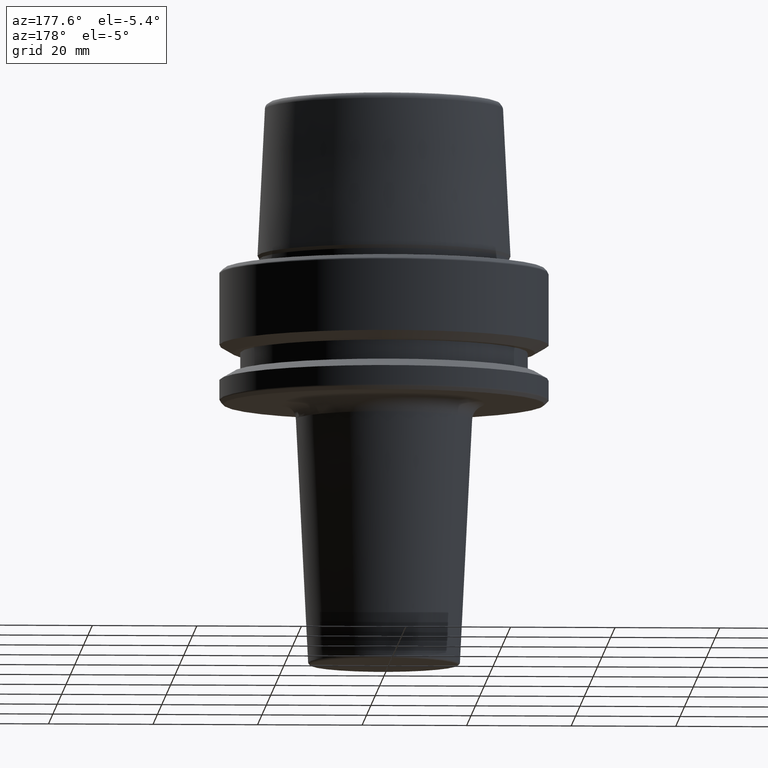
[diagram: clean part render]
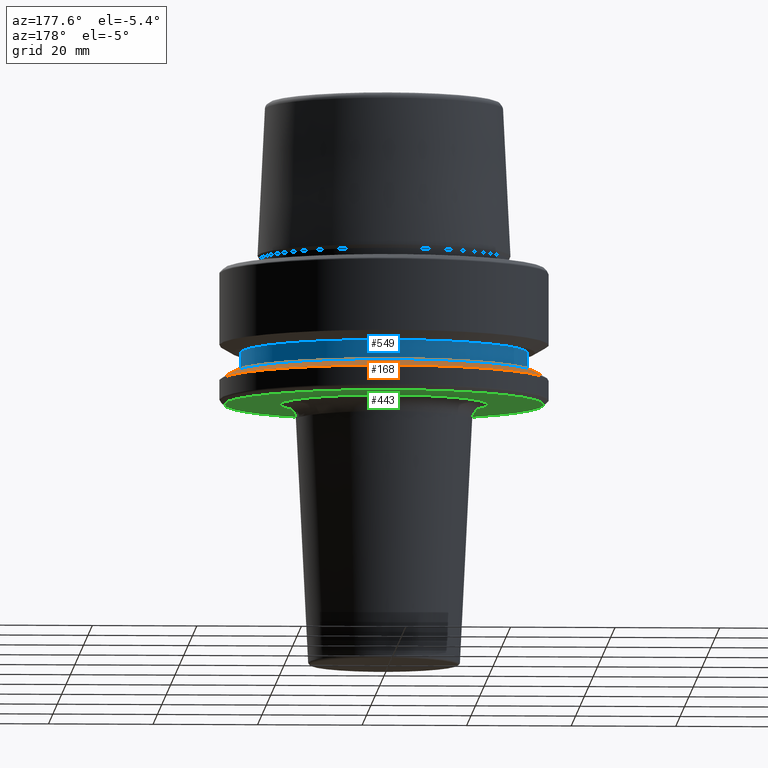
[diagram: same view with three faces highlighted in distinct colors, each labeled with its STEP entity id]
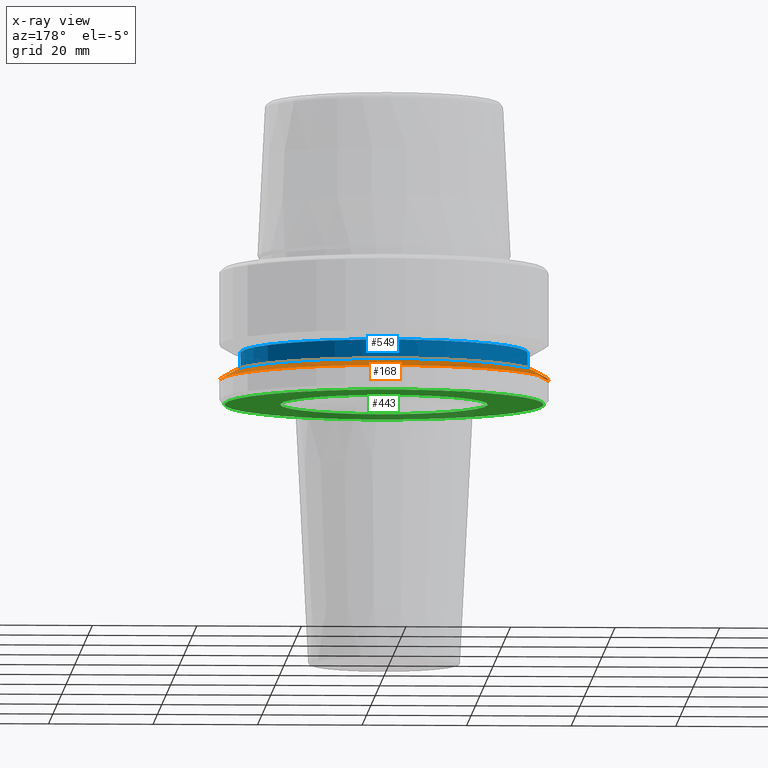
[diagram: x-ray of the same camera — body ghosted, the three highlighted faces saturated]
A machine part, auxiliary view with three faces highlighted in distinct colors.
The next image is the same camera in x-ray (body ghosted, the three faces saturated) — at least one of them is partly hidden behind the body in this view.
Their STEP definitions:

[orange] entity #168 — the highlighted conical surface has half-angle 60 deg.
#6 = AXIS2_PLACEMENT_3D ( 'NONE', #300, #679, #693 ) ;
#31 = EDGE_LOOP ( 'NONE', ( #89, #1106, #1166, #448 ) ) ;
#55 = DIRECTION ( 'NONE',  ( -1.000000000000000000, 0.0000000000000000000, 0.0000000000000000000 ) ) ;
#67 = LINE ( 'NONE', #913, #785 ) ;
#89 = ORIENTED_EDGE ( 'NONE', *, *, #515, .F. ) ;
#162 = VERTEX_POINT ( 'NONE', #535 ) ;
#168 = ADVANCED_FACE ( 'NONE', ( #831 ), #845, .T. ) ;
#200 = DIRECTION ( 'NONE',  ( -0.8660254037844410400, 0.0000000000000000000, -0.4999999999999958400 ) ) ;
#235 = CARTESIAN_POINT ( 'NONE',  ( 0.0000000000000000000, 0.0000000000000000000, -19.90000000000001600 ) ) ;
#287 = CIRCLE ( 'NONE', #6, 31.50000000000000000 ) ;
#294 = CARTESIAN_POINT ( 'NONE',  ( 31.50000000000000000, 0.0000000000000000000, -21.37749907475931700 ) ) ;
#300 = CARTESIAN_POINT ( 'NONE',  ( 0.0000000000000000000, 0.0000000000000000000, -21.37749907475931700 ) ) ;
#359 = EDGE_CURVE ( 'NONE', #824, #1091, #1127, .T. ) ;
#417 = DIRECTION ( 'NONE',  ( 0.0000000000000000000, 0.0000000000000000000, -1.000000000000000000 ) ) ;
#433 = VECTOR ( 'NONE', #851, 1000.000000000000100 ) ;
#448 = ORIENTED_EDGE ( 'NONE', *, *, #553, .F. ) ;
#482 = AXIS2_PLACEMENT_3D ( 'NONE', #235, #799, #704 ) ;
#512 = CARTESIAN_POINT ( 'NONE',  ( 28.94089653438085100, 3.700937523921292900E-015, -19.90000000000001600 ) ) ;
#515 = EDGE_CURVE ( 'NONE', #824, #615, #1186, .T. ) ;
#535 = CARTESIAN_POINT ( 'NONE',  ( -31.50000000000000000, 3.857637417314162700E-015, -21.37749907475931700 ) ) ;
#553 = EDGE_CURVE ( 'NONE', #615, #162, #67, .T. ) ;
#556 = CARTESIAN_POINT ( 'NONE',  ( 31.50000000000000000, 3.857637417314162700E-015, -21.37749907475931700 ) ) ;
#615 = VERTEX_POINT ( 'NONE', #768 ) ;
#616 = EDGE_CURVE ( 'NONE', #1091, #162, #287, .T. ) ;
#679 = DIRECTION ( 'NONE',  ( -0.0000000000000000000, -0.0000000000000000000, 1.000000000000000000 ) ) ;
#693 = DIRECTION ( 'NONE',  ( 1.000000000000000000, 0.0000000000000000000, 0.0000000000000000000 ) ) ;
#704 = DIRECTION ( 'NONE',  ( 1.000000000000000000, 0.0000000000000000000, 0.0000000000000000000 ) ) ;
#768 = CARTESIAN_POINT ( 'NONE',  ( -28.94089653438085100, 0.0000000000000000000, -19.90000000000001600 ) ) ;
#785 = VECTOR ( 'NONE', #200, 1000.000000000000100 ) ;
#799 = DIRECTION ( 'NONE',  ( -0.0000000000000000000, -0.0000000000000000000, 1.000000000000000000 ) ) ;
#824 = VERTEX_POINT ( 'NONE', #512 ) ;
#831 = FACE_OUTER_BOUND ( 'NONE', #31, .T. ) ;
#845 = CONICAL_SURFACE ( 'NONE', #854, 31.50000000000000000, 1.047197551196602500 ) ;
#851 = DIRECTION ( 'NONE',  ( 0.8660254037844410400, 1.060575238724909700E-016, -0.4999999999999958400 ) ) ;
#854 = AXIS2_PLACEMENT_3D ( 'NONE', #920, #417, #55 ) ;
#913 = CARTESIAN_POINT ( 'NONE',  ( -31.50000000000000000, 0.0000000000000000000, -21.37749907475931700 ) ) ;
#920 = CARTESIAN_POINT ( 'NONE',  ( 0.0000000000000000000, 0.0000000000000000000, -21.37749907475931700 ) ) ;
#1091 = VERTEX_POINT ( 'NONE', #294 ) ;
#1106 = ORIENTED_EDGE ( 'NONE', *, *, #359, .T. ) ;
#1127 = LINE ( 'NONE', #556, #433 ) ;
#1166 = ORIENTED_EDGE ( 'NONE', *, *, #616, .T. ) ;
#1186 = CIRCLE ( 'NONE', #482, 28.94089653438085100 ) ;

[blue] entity #549 — the highlighted cylindrical surface (partial cylindrical patch) has radius 27.5 mm, axis along (-0, -0, 1).
#16 = DIRECTION ( 'NONE',  ( -0.0000000000000000000, -0.0000000000000000000, 1.000000000000000000 ) ) ;
#22 = CARTESIAN_POINT ( 'NONE',  ( 0.0000000000000000000, 0.0000000000000000000, 78.96908074195309300 ) ) ;
#25 = FACE_OUTER_BOUND ( 'NONE', #1147, .T. ) ;
#60 = LINE ( 'NONE', #384, #790 ) ;
#164 = VERTEX_POINT ( 'NONE', #673 ) ;
#183 = VERTEX_POINT ( 'NONE', #1020 ) ;
#199 = DIRECTION ( 'NONE',  ( -0.0000000000000000000, -0.0000000000000000000, 1.000000000000000000 ) ) ;
#208 = CARTESIAN_POINT ( 'NONE',  ( -27.49999999999999600, 3.367778697655220900E-015, -19.90000000000001600 ) ) ;
#209 = ORIENTED_EDGE ( 'NONE', *, *, #870, .T. ) ;
#247 = AXIS2_PLACEMENT_3D ( 'NONE', #789, #1175, #873 ) ;
#282 = VERTEX_POINT ( 'NONE', #817 ) ;
#384 = CARTESIAN_POINT ( 'NONE',  ( 27.49999999999999600, 0.0000000000000000000, 78.96908074195309300 ) ) ;
#403 = DIRECTION ( 'NONE',  ( 1.000000000000000000, 0.0000000000000000000, 0.0000000000000000000 ) ) ;
#453 = VECTOR ( 'NONE', #490, 1000.000000000000000 ) ;
#485 = ORIENTED_EDGE ( 'NONE', *, *, #1230, .F. ) ;
#490 = DIRECTION ( 'NONE',  ( -0.0000000000000000000, -0.0000000000000000000, 1.000000000000000000 ) ) ;
#505 = CYLINDRICAL_SURFACE ( 'NONE', #1073, 27.49999999999999600 ) ;
#549 = ADVANCED_FACE ( 'NONE', ( #25 ), #505, .T. ) ;
#583 = DIRECTION ( 'NONE',  ( -0.0000000000000000000, -0.0000000000000000000, 1.000000000000000000 ) ) ;
#673 = CARTESIAN_POINT ( 'NONE',  ( 27.49999999999999600, 0.0000000000000000000, -19.90000000000001600 ) ) ;
#733 = VERTEX_POINT ( 'NONE', #208 ) ;
#782 = CARTESIAN_POINT ( 'NONE',  ( -27.49999999999999600, 3.367778697655220900E-015, 78.96908074195309300 ) ) ;
#789 = CARTESIAN_POINT ( 'NONE',  ( 0.0000000000000000000, 0.0000000000000000000, -19.90000000000001600 ) ) ;
#790 = VECTOR ( 'NONE', #199, 1000.000000000000000 ) ;
#817 = CARTESIAN_POINT ( 'NONE',  ( -27.49999999999999600, 3.367778697655220900E-015, -16.10000000000001600 ) ) ;
#870 = EDGE_CURVE ( 'NONE', #164, #733, #1189, .T. ) ;
#873 = DIRECTION ( 'NONE',  ( 1.000000000000000000, 0.0000000000000000000, 0.0000000000000000000 ) ) ;
#992 = EDGE_CURVE ( 'NONE', #164, #183, #60, .T. ) ;
#993 = CARTESIAN_POINT ( 'NONE',  ( 0.0000000000000000000, 0.0000000000000000000, -16.10000000000001600 ) ) ;
#1020 = CARTESIAN_POINT ( 'NONE',  ( 27.49999999999999600, 0.0000000000000000000, -16.10000000000001600 ) ) ;
#1031 = ORIENTED_EDGE ( 'NONE', *, *, #1149, .T. ) ;
#1073 = AXIS2_PLACEMENT_3D ( 'NONE', #22, #583, #1102 ) ;
#1102 = DIRECTION ( 'NONE',  ( 1.000000000000000000, 0.0000000000000000000, 0.0000000000000000000 ) ) ;
#1132 = AXIS2_PLACEMENT_3D ( 'NONE', #993, #16, #403 ) ;
#1147 = EDGE_LOOP ( 'NONE', ( #209, #1031, #485, #1237 ) ) ;
#1149 = EDGE_CURVE ( 'NONE', #733, #282, #1159, .T. ) ;
#1154 = CIRCLE ( 'NONE', #1132, 27.49999999999999600 ) ;
#1159 = LINE ( 'NONE', #782, #453 ) ;
#1175 = DIRECTION ( 'NONE',  ( -0.0000000000000000000, -0.0000000000000000000, 1.000000000000000000 ) ) ;
#1189 = CIRCLE ( 'NONE', #247, 27.49999999999999600 ) ;
#1230 = EDGE_CURVE ( 'NONE', #183, #282, #1154, .T. ) ;
#1237 = ORIENTED_EDGE ( 'NONE', *, *, #992, .F. ) ;

[green] entity #443 — the highlighted planar face has unit normal (0, -0, 1).
#11 = VERTEX_POINT ( 'NONE', #703 ) ;
#42 = VERTEX_POINT ( 'NONE', #45 ) ;
#45 = CARTESIAN_POINT ( 'NONE',  ( -30.53431457505076100, 3.756694181974138600E-015, -26.00000000000001100 ) ) ;
#82 = PLANE ( 'NONE',  #366 ) ;
#133 = DIRECTION ( 'NONE',  ( 1.000000000000000000, 0.0000000000000000000, 0.0000000000000000000 ) ) ;
#169 = AXIS2_PLACEMENT_3D ( 'NONE', #847, #432, #133 ) ;
#182 = DIRECTION ( 'NONE',  ( 1.000000000000000000, 0.0000000000000000000, 0.0000000000000000000 ) ) ;
#189 = CIRCLE ( 'NONE', #897, 30.53431457505076100 ) ;
#216 = EDGE_LOOP ( 'NONE', ( #291, #663 ) ) ;
#249 = CARTESIAN_POINT ( 'NONE',  ( 30.53431457505076100, 0.0000000000000000000, -26.00000000000001100 ) ) ;
#272 = DIRECTION ( 'NONE',  ( 1.000000000000000000, 0.0000000000000000000, 0.0000000000000000000 ) ) ;
#277 = CARTESIAN_POINT ( 'NONE',  ( 0.0000000000000000000, 30.53431457505076100, -26.00000000000001100 ) ) ;
#291 = ORIENTED_EDGE ( 'NONE', *, *, #442, .T. ) ;
#298 = AXIS2_PLACEMENT_3D ( 'NONE', #1241, #1006, #182 ) ;
#306 = VERTEX_POINT ( 'NONE', #249 ) ;
#344 = CIRCLE ( 'NONE', #1229, 19.85374765917510900 ) ;
#355 = CARTESIAN_POINT ( 'NONE',  ( -19.85374765917510900, 2.431382852188805000E-015, -26.00000000000001100 ) ) ;
#366 = AXIS2_PLACEMENT_3D ( 'NONE', #277, #730, #272 ) ;
#367 = EDGE_CURVE ( 'NONE', #42, #306, #189, .T. ) ;
#386 = VERTEX_POINT ( 'NONE', #355 ) ;
#408 = EDGE_CURVE ( 'NONE', #386, #11, #344, .T. ) ;
#432 = DIRECTION ( 'NONE',  ( -0.0000000000000000000, -0.0000000000000000000, 1.000000000000000000 ) ) ;
#442 = EDGE_CURVE ( 'NONE', #11, #386, #1141, .T. ) ;
#443 = ADVANCED_FACE ( 'NONE', ( #814, #899 ), #82, .F. ) ;
#445 = DIRECTION ( 'NONE',  ( 1.000000000000000000, 0.0000000000000000000, 0.0000000000000000000 ) ) ;
#449 = EDGE_CURVE ( 'NONE', #306, #42, #455, .T. ) ;
#455 = CIRCLE ( 'NONE', #298, 30.53431457505076100 ) ;
#521 = DIRECTION ( 'NONE',  ( -0.0000000000000000000, -0.0000000000000000000, 1.000000000000000000 ) ) ;
#530 = EDGE_LOOP ( 'NONE', ( #1049, #690 ) ) ;
#618 = CARTESIAN_POINT ( 'NONE',  ( 0.0000000000000000000, 0.0000000000000000000, -26.00000000000001100 ) ) ;
#663 = ORIENTED_EDGE ( 'NONE', *, *, #408, .T. ) ;
#690 = ORIENTED_EDGE ( 'NONE', *, *, #367, .F. ) ;
#703 = CARTESIAN_POINT ( 'NONE',  ( 19.85374765917510900, 0.0000000000000000000, -26.00000000000001100 ) ) ;
#730 = DIRECTION ( 'NONE',  ( 0.0000000000000000000, -0.0000000000000000000, 1.000000000000000000 ) ) ;
#814 = FACE_BOUND ( 'NONE', #216, .T. ) ;
#847 = CARTESIAN_POINT ( 'NONE',  ( 0.0000000000000000000, 0.0000000000000000000, -26.00000000000001100 ) ) ;
#897 = AXIS2_PLACEMENT_3D ( 'NONE', #618, #521, #910 ) ;
#899 = FACE_OUTER_BOUND ( 'NONE', #530, .T. ) ;
#910 = DIRECTION ( 'NONE',  ( 1.000000000000000000, 0.0000000000000000000, 0.0000000000000000000 ) ) ;
#1006 = DIRECTION ( 'NONE',  ( -0.0000000000000000000, -0.0000000000000000000, 1.000000000000000000 ) ) ;
#1019 = CARTESIAN_POINT ( 'NONE',  ( 0.0000000000000000000, 0.0000000000000000000, -26.00000000000001100 ) ) ;
#1049 = ORIENTED_EDGE ( 'NONE', *, *, #449, .F. ) ;
#1118 = DIRECTION ( 'NONE',  ( -0.0000000000000000000, -0.0000000000000000000, 1.000000000000000000 ) ) ;
#1141 = CIRCLE ( 'NONE', #169, 19.85374765917510900 ) ;
#1229 = AXIS2_PLACEMENT_3D ( 'NONE', #1019, #1118, #445 ) ;
#1241 = CARTESIAN_POINT ( 'NONE',  ( 0.0000000000000000000, 0.0000000000000000000, -26.00000000000001100 ) ) ;